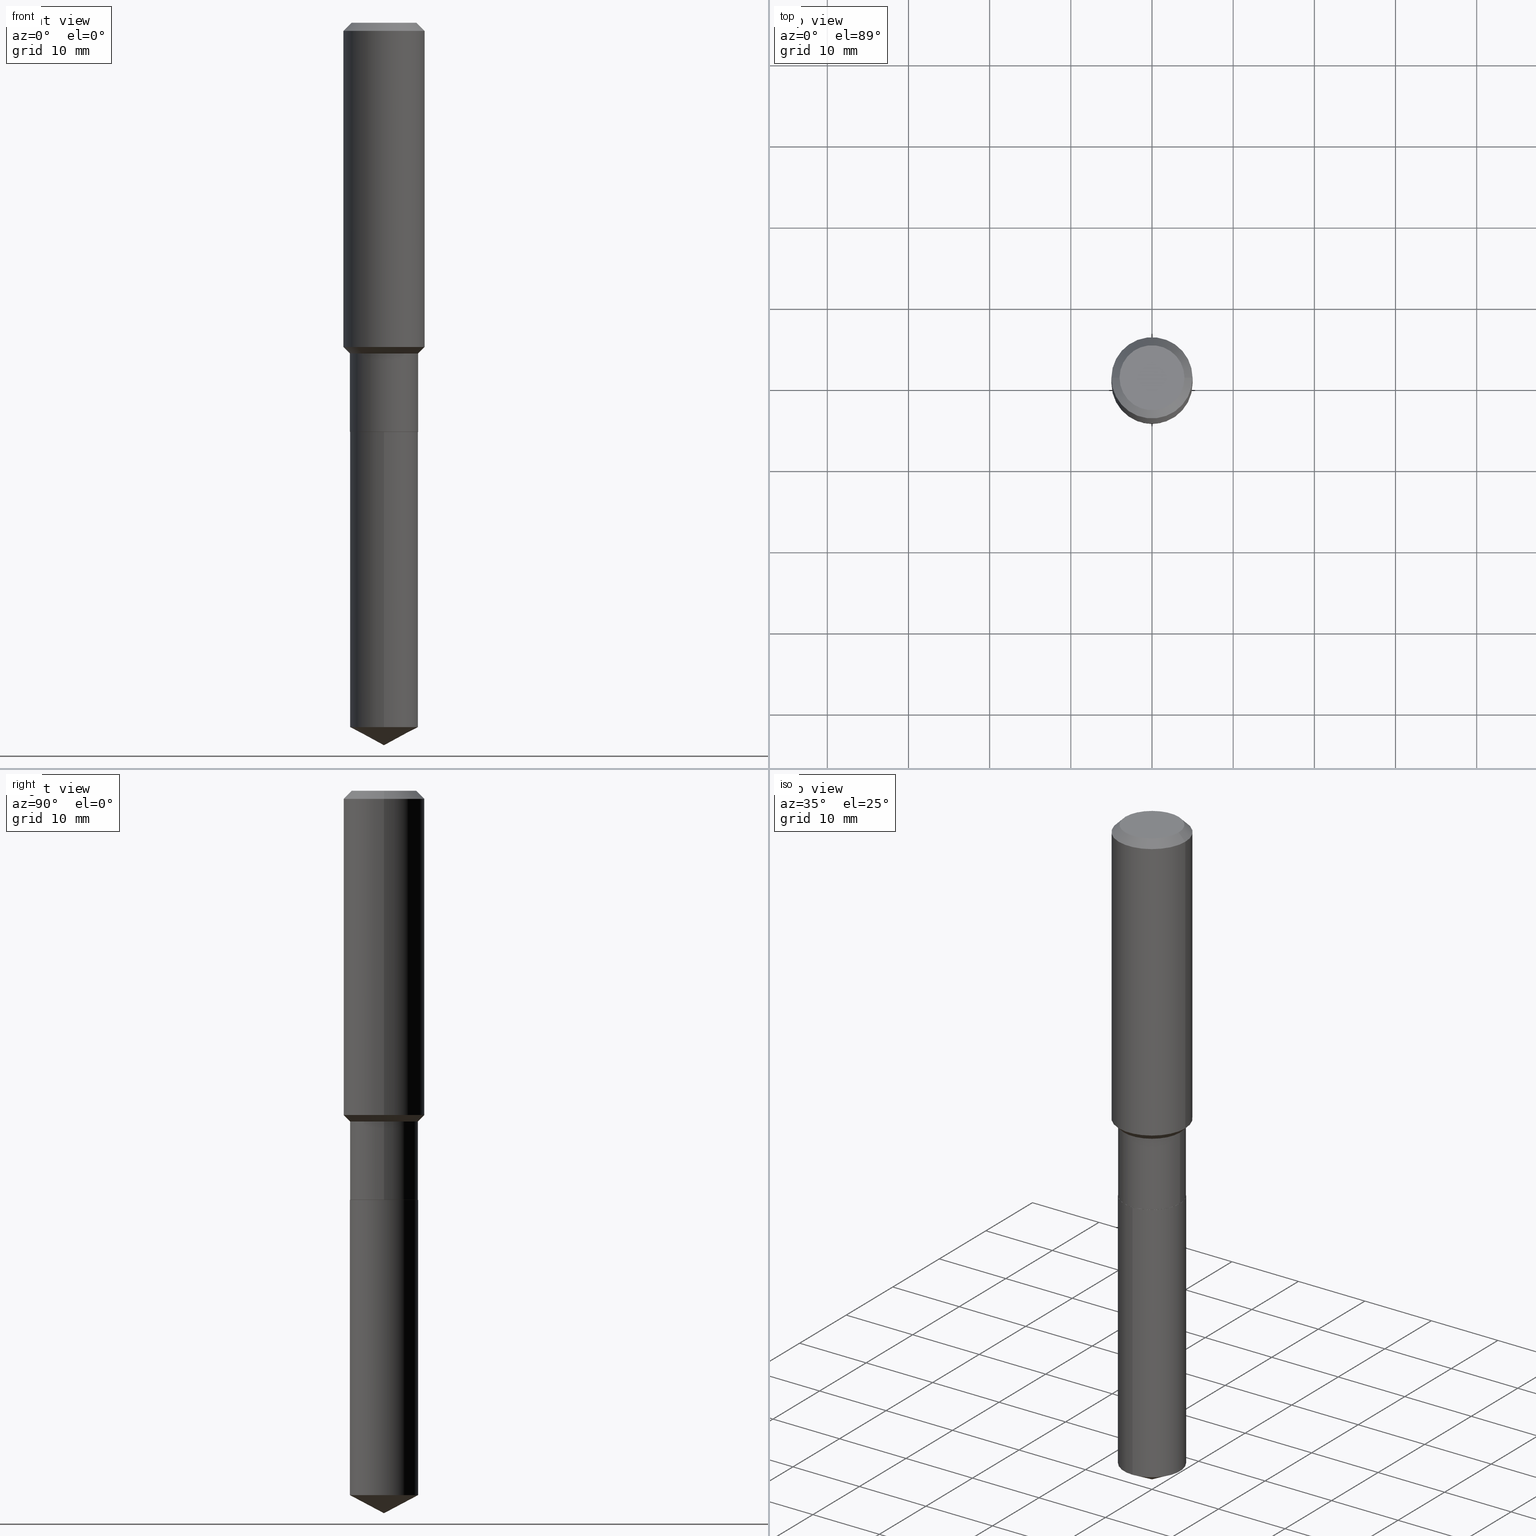
[diagram: canonical four-view strip — front | top / right | iso, engineering-drawing reading convention]
A machine part, canonical four-view strip (front | top / right | iso — engineering-drawing reading convention). The complete STEP part file that produces these views, byte-faithful:
ISO-10303-21;
HEADER;
FILE_DESCRIPTION (( 'STEP AP203' ),
    '1' );
FILE_NAME ('64654.STEP',
    '2024-04-24T18:36:30',
    ( '' ),
    ( '' ),
    'SwSTEP 2.0',
    'SolidWorks 2023',
    '' );
FILE_SCHEMA (( 'CONFIG_CONTROL_DESIGN' ));
ENDSEC;

DATA;
#1 = CIRCLE ( 'NONE', #21, 0.1653499999999999415 ) ;
#2 = AXIS2_PLACEMENT_3D ( 'NONE', #329, #45, #189 ) ;
#3 = ORIENTED_EDGE ( 'NONE', *, *, #378, .F. ) ;
#4 = ORIENTED_EDGE ( 'NONE', *, *, #359, .T. ) ;
#5 = DIRECTION ( 'NONE',  ( -2.445468806185136877E-29, 3.491481338843145188E-15, 1.000000000000000000 ) ) ;
#6 = EDGE_CURVE ( 'NONE', #107, #25, #1, .T. ) ;
#7 = ORIENTED_EDGE ( 'NONE', *, *, #13, .T. ) ;
#8 = CARTESIAN_POINT ( 'NONE',  ( 0.000000000000000000, 0.000000000000000000, 0.000000000000000000 ) ) ;
#9 = ORIENTED_EDGE ( 'NONE', *, *, #253, .T. ) ;
#10 = CARTESIAN_POINT ( 'NONE',  ( 0.1653499999999999415, -6.754619798125944299E-15, -1.603899999999999881 ) ) ;
#11 = FACE_OUTER_BOUND ( 'NONE', #128, .T. ) ;
#12 = PERSON_AND_ORGANIZATION ( #479, #88 ) ;
#13 = EDGE_CURVE ( 'NONE', #225, #152, #80, .T. ) ;
#14 = LINE ( 'NONE', #311, #90 ) ;
#15 = PRODUCT_DEFINITION_FORMATION_WITH_SPECIFIED_SOURCE ( 'ANY', '', #176, .NOT_KNOWN. ) ;
#16 = ORIENTED_EDGE ( 'NONE', *, *, #249, .F. ) ;
#17 = DIRECTION ( 'NONE',  ( -1.000000000000000000, 6.982962677686265922E-15, -4.876176775795935793E-29 ) ) ;
#18 = DIRECTION ( 'NONE',  ( -2.445567022801007266E-29, 3.491340687059075982E-15, 1.000000000000000000 ) ) ;
#19 = PLANE ( 'NONE',  #32 ) ;
#20 = CARTESIAN_POINT ( 'NONE',  ( -0.1968500000000001082, 1.398703375343757985E-15, -9.682923725166787881E-30 ) ) ;
#21 = AXIS2_PLACEMENT_3D ( 'NONE', #205, #87, #286 ) ;
#22 = EDGE_LOOP ( 'NONE', ( #260, #339, #247 ) ) ;
#23 = AXIS2_PLACEMENT_3D ( 'NONE', #384, #280, #220 ) ;
#24 = PERSON_AND_ORGANIZATION_ROLE ( 'creator' ) ;
#25 = VERTEX_POINT ( 'NONE', #264 ) ;
#26 = EDGE_CURVE ( 'NONE', #301, #282, #356, .T. ) ;
#27 = DIRECTION ( 'NONE',  ( 0.000000000000000000, 0.000000000000000000, 1.000000000000000000 ) ) ;
#28 = ADVANCED_FACE ( 'NONE', ( #50 ), #211, .T. ) ;
#29 = ADVANCED_FACE ( 'NONE', ( #74 ), #256, .T. ) ;
#30 = EDGE_CURVE ( 'NONE', #107, #209, #67, .T. ) ;
#31 = CIRCLE ( 'NONE', #141, 0.1968500000000002192 ) ;
#32 = AXIS2_PLACEMENT_3D ( 'NONE', #377, #119, #477 ) ;
#33 = CC_DESIGN_SECURITY_CLASSIFICATION ( #285, ( #15 ) ) ;
#34 = ORIENTED_EDGE ( 'NONE', *, *, #122, .F. ) ;
#35 = EDGE_CURVE ( 'NONE', #371, #314, #283, .T. ) ;
#36 = EDGE_LOOP ( 'NONE', ( #226, #341, #265, #184 ) ) ;
#37 = AXIS2_PLACEMENT_3D ( 'NONE', #453, #353, #17 ) ;
#38 = CARTESIAN_POINT ( 'NONE',  ( 0.1968500000000000527, -1.512055823412797583E-15, -0.03937000000000027283 ) ) ;
#39 = CARTESIAN_POINT ( 'NONE',  ( 0.000000000000000000, 0.000000000000000000, 0.000000000000000000 ) ) ;
#40 = EDGE_LOOP ( 'NONE', ( #444, #143, #76, #202 ) ) ;
#41 = CARTESIAN_POINT ( 'NONE',  ( 8.569022291192448495E-29, -1.223330863338629532E-14, -3.503899999999999793 ) ) ;
#42 = ADVANCED_FACE ( 'NONE', ( #452 ), #229, .T. ) ;
#43 = DIRECTION ( 'NONE',  ( -2.445567022801007546E-29, 3.491340687059075982E-15, 1.000000000000000000 ) ) ;
#44 = AXIS2_PLACEMENT_3D ( 'NONE', #81, #331, #390 ) ;
#45 = DIRECTION ( 'NONE',  ( -2.445567022801007266E-29, 3.491340687059075982E-15, 1.000000000000000000 ) ) ;
#46 = PERSON_AND_ORGANIZATION_ROLE ( 'creator' ) ;
#47 = EDGE_CURVE ( 'NONE', #209, #296, #169, .T. ) ;
#48 = DATE_AND_TIME ( #201, #423 ) ;
#49 = ORIENTED_EDGE ( 'NONE', *, *, #6, .F. ) ;
#50 = FACE_OUTER_BOUND ( 'NONE', #22, .T. ) ;
#51 = DATE_AND_TIME ( #464, #357 ) ;
#52 = CC_DESIGN_APPROVAL ( #333, ( #175 ) ) ;
#53 = DIRECTION ( 'NONE',  ( -2.445468806185136597E-29, 3.491481338843145583E-15, 1.000000000000000000 ) ) ;
#54 = COORDINATED_UNIVERSAL_TIME_OFFSET ( 5, 0, .BEHIND. ) ;
#55 = DIRECTION ( 'NONE',  ( -6.982962677686265133E-15, -1.000000000000000000, 3.304321734096478263E-15 ) ) ;
#56 = EDGE_CURVE ( 'NONE', #296, #230, #173, .T. ) ;
#57 = CARTESIAN_POINT ( 'NONE',  ( 4.852299205232547281E-29, -6.927797272532568497E-15, -1.984199999999999742 ) ) ;
#58 = CARTESIAN_POINT ( 'NONE',  ( 9.627810689950950651E-31, -1.374596203102555808E-16, -0.03937000000000027283 ) ) ;
#59 = CONICAL_SURFACE ( 'NONE', #206, 0.1968500000000000527, 0.7853981633974453924 ) ;
#60 = ORIENTED_EDGE ( 'NONE', *, *, #466, .T. ) ;
#61 = COORDINATED_UNIVERSAL_TIME_OFFSET ( 5, 0, .BEHIND. ) ;
#62 = ADVANCED_FACE ( 'NONE', ( #439 ), #121, .F. ) ;
#63 = AXIS2_PLACEMENT_3D ( 'NONE', #239, #383, #161 ) ;
#64 = AXIS2_PLACEMENT_3D ( 'NONE', #8, #218, #100 ) ;
#65 = DIRECTION ( 'NONE',  ( 1.000000000000000000, -6.982962677686266711E-15, 4.876176775795935793E-29 ) ) ;
#66 = EDGE_CURVE ( 'NONE', #219, #230, #31, .T. ) ;
#67 = LINE ( 'NONE', #204, #362 ) ;
#68 = AXIS2_PLACEMENT_3D ( 'NONE', #257, #454, #404 ) ;
#69 = AXIS2_PLACEMENT_3D ( 'NONE', #241, #18, #387 ) ;
#70 = LINE ( 'NONE', #223, #441 ) ;
#71 = ORIENTED_EDGE ( 'NONE', *, *, #409, .T. ) ;
#72 = ORIENTED_EDGE ( 'NONE', *, *, #400, .T. ) ;
#73 = DIRECTION ( 'NONE',  ( -2.445468806185136597E-29, 3.491481338843145583E-15, 1.000000000000000000 ) ) ;
#74 = FACE_OUTER_BOUND ( 'NONE', #137, .T. ) ;
#75 = AXIS2_PLACEMENT_3D ( 'NONE', #437, #394, #420 ) ;
#76 = ORIENTED_EDGE ( 'NONE', *, *, #227, .F. ) ;
#77 = DIRECTION ( 'NONE',  ( -2.445567022801007266E-29, 3.491340687059075982E-15, 1.000000000000000000 ) ) ;
#78 = ORIENTED_EDGE ( 'NONE', *, *, #182, .F. ) ;
#79 = DIRECTION ( 'NONE',  ( 1.000000000000000000, -6.982962677686266711E-15, 0.000000000000000000 ) ) ;
#80 = CIRCLE ( 'NONE', #75, 0.1648499999999999965 ) ;
#81 = CARTESIAN_POINT ( 'NONE',  ( 3.922287418240340052E-29, -5.599986919370520029E-15, -1.603899999999999881 ) ) ;
#82 = DIRECTION ( 'NONE',  ( 1.000000000000000000, -6.982962677686265922E-15, 0.000000000000000000 ) ) ;
#83 = PERSON_AND_ORGANIZATION ( #479, #88 ) ;
#84 = APPROVAL ( #303, 'UNSPECIFIED' ) ;
#85 = DIRECTION ( 'NONE',  ( 1.000000000000000000, -6.982962677686268288E-15, 0.000000000000000000 ) ) ;
#86 = EDGE_LOOP ( 'NONE', ( #146, #130 ) ) ;
#87 = DIRECTION ( 'NONE',  ( -2.445468806185136597E-29, 3.491481338843145583E-15, 1.000000000000000000 ) ) ;
#88 = ORGANIZATION ( 'UNSPECIFIED', 'UNSPECIFIED', '' ) ;
#89 = LINE ( 'NONE', #396, #460 ) ;
#90 = VECTOR ( 'NONE', #470, 39.37007874015748143 ) ;
#91 = APPROVAL_DATE_TIME ( #480, #333 ) ;
#92 = DIRECTION ( 'NONE',  ( -0.7071067811865454633, 2.468850131082235367E-15, -0.7071067811865495711 ) ) ;
#93 = MANIFOLD_SOLID_BREP ( 'Body-Move/Copy2[1]', #245 ) ;
#94 = CARTESIAN_POINT ( 'NONE',  ( -1.154632878755340651E-15, -0.1653500000000119041, -3.415981845474774126 ) ) ;
#95 = CARTESIAN_POINT ( 'NONE',  ( 9.627810689950950651E-31, -1.374596203102555808E-16, -0.03937000000000027283 ) ) ;
#96 = AXIS2_PLACEMENT_3D ( 'NONE', #150, #403, #79 ) ;
#97 = VECTOR ( 'NONE', #129, 39.37007874015748143 ) ;
#98 = EDGE_LOOP ( 'NONE', ( #126, #490 ) ) ;
#99 = DIRECTION ( 'NONE',  ( -1.000000000000000000, 6.982962677686266711E-15, 0.000000000000000000 ) ) ;
#100 = DIRECTION ( 'NONE',  ( 1.000000000000000000, -6.982962677686267499E-15, 4.876176775795935793E-29 ) ) ;
#101 = EDGE_LOOP ( 'NONE', ( #147, #9, #104, #448 ) ) ;
#102 = EDGE_LOOP ( 'NONE', ( #217, #154, #312, #336 ) ) ;
#103 = CARTESIAN_POINT ( 'NONE',  ( 3.845255150845508133E-29, -5.490005257196960571E-15, -1.572399999999999576 ) ) ;
#104 = ORIENTED_EDGE ( 'NONE', *, *, #30, .T. ) ;
#105 = DIRECTION ( 'NONE',  ( 0.7071067811865482389, -2.468850131082264555E-15, 0.7071067811865467956 ) ) ;
#106 = EDGE_LOOP ( 'NONE', ( #167, #71, #49, #475 ) ) ;
#107 = VERTEX_POINT ( 'NONE', #473 ) ;
#108 = CONICAL_SURFACE ( 'NONE', #304, 0.1648499999999999965, 0.7853981633972434429 ) ;
#109 = CALENDAR_DATE ( 2024, 24, 4 ) ;
#110 = APPROVAL_ROLE ( '' ) ;
#111 = DIRECTION ( 'NONE',  ( 6.982962677686265922E-15, 1.000000000000000000, -3.491340687059075982E-15 ) ) ;
#112 = CARTESIAN_POINT ( 'NONE',  ( 0.1968500000000000527, -1.487948651171581996E-15, -0.03937000000000027283 ) ) ;
#113 = CARTESIAN_POINT ( 'NONE',  ( 0.000000000000000000, 0.000000000000000000, 0.000000000000000000 ) ) ;
#114 = EDGE_CURVE ( 'NONE', #282, #301, #274, .T. ) ;
#115 = CONICAL_SURFACE ( 'NONE', #163, 74.04434902938356799, 1.082104136236486713 ) ;
#116 = CIRCLE ( 'NONE', #165, 0.1653499999999999970 ) ;
#117 = EDGE_LOOP ( 'NONE', ( #192, #60, #291, #295 ) ) ;
#118 = FACE_OUTER_BOUND ( 'NONE', #106, .T. ) ;
#119 = DIRECTION ( 'NONE',  ( -2.438088387897960049E-29, 3.491481338843145188E-15, 1.000000000000000000 ) ) ;
#120 = CALENDAR_DATE ( 2024, 24, 4 ) ;
#121 = PLANE ( 'NONE',  #37 ) ;
#122 = EDGE_CURVE ( 'NONE', #209, #219, #478, .T. ) ;
#123 = AXIS2_PLACEMENT_3D ( 'NONE', #376, #53, #275 ) ;
#124 = AXIS2_PLACEMENT_3D ( 'NONE', #57, #203, #352 ) ;
#125 = LINE ( 'NONE', #172, #198 ) ;
#126 = ORIENTED_EDGE ( 'NONE', *, *, #26, .T. ) ;
#127 = DIRECTION ( 'NONE',  ( 1.000000000000000000, -6.982962677686266711E-15, 0.000000000000000000 ) ) ;
#128 = EDGE_LOOP ( 'NONE', ( #252, #4 ) ) ;
#129 = DIRECTION ( 'NONE',  ( -6.165590087286835240E-15, -0.8829475928589264333, 0.4694715627858918050 ) ) ;
#130 = ORIENTED_EDGE ( 'NONE', *, *, #13, .F. ) ;
#131 = ADVANCED_FACE ( 'NONE', ( #457 ), #115, .T. ) ;
#132 = FACE_OUTER_BOUND ( 'NONE', #36, .T. ) ;
#133 = VECTOR ( 'NONE', #168, 39.37007874015748143 ) ;
#134 = CIRCLE ( 'NONE', #422, 0.1968500000000000527 ) ;
#135 = LOCAL_TIME ( 14, 36, 30.00000000000000000, #191 ) ;
#136 = ADVANCED_FACE ( 'NONE', ( #155 ), #108, .T. ) ;
#137 = EDGE_LOOP ( 'NONE', ( #398, #487, #292, #34 ) ) ;
#138 = PRODUCT_RELATED_PRODUCT_CATEGORY ( 'detail', '', ( #176 ) ) ;
#139 = EDGE_LOOP ( 'NONE', ( #78, #483, #72, #450 ) ) ;
#140 = DIRECTION ( 'NONE',  ( 1.000000000000000000, -6.982962677686266711E-15, 4.876176775795935793E-29 ) ) ;
#141 = AXIS2_PLACEMENT_3D ( 'NONE', #313, #166, #82 ) ;
#142 = CONICAL_SURFACE ( 'NONE', #124, 0.1648499999999999965, 0.7853981633972434429 ) ;
#143 = ORIENTED_EDGE ( 'NONE', *, *, #445, .T. ) ;
#144 = APPROVAL_PERSON_ORGANIZATION ( #83, #261, #110 ) ;
#145 = EDGE_CURVE ( 'NONE', #415, #262, #337, .T. ) ;
#146 = ORIENTED_EDGE ( 'NONE', *, *, #153, .F. ) ;
#147 = ORIENTED_EDGE ( 'NONE', *, *, #466, .F. ) ;
#148 = DIRECTION ( 'NONE',  ( -2.445567022801007266E-29, 3.491340687059075982E-15, 1.000000000000000000 ) ) ;
#149 = PERSON_AND_ORGANIZATION ( #479, #88 ) ;
#150 = CARTESIAN_POINT ( 'NONE',  ( 9.627810689950950651E-31, -1.374596203102555808E-16, -0.03937000000000027283 ) ) ;
#151 = CARTESIAN_POINT ( 'NONE',  ( -0.1653499999999999415, 1.174882413579325241E-15, -8.133459171736485198E-30 ) ) ;
#152 = VERTEX_POINT ( 'NONE', #242 ) ;
#153 = EDGE_CURVE ( 'NONE', #152, #225, #367, .T. ) ;
#154 = ORIENTED_EDGE ( 'NONE', *, *, #26, .F. ) ;
#155 = FACE_OUTER_BOUND ( 'NONE', #472, .T. ) ;
#156 = AXIS2_PLACEMENT_3D ( 'NONE', #373, #425, #111 ) ;
#157 = DATE_AND_TIME ( #109, #135 ) ;
#158 = DIRECTION ( 'NONE',  ( -6.982962677686268288E-15, -1.000000000000000000, 3.541896320645559291E-15 ) ) ;
#159 = ORIENTED_EDGE ( 'NONE', *, *, #409, .F. ) ;
#160 = CARTESIAN_POINT ( 'NONE',  ( 4.852299205232547281E-29, -6.927797272532568497E-15, -1.984199999999999742 ) ) ;
#161 = DIRECTION ( 'NONE',  ( 1.000000000000000000, -6.982962677686265922E-15, 4.876223630392693006E-29 ) ) ;
#162 = APPROVAL_DATE_TIME ( #48, #261 ) ;
#163 = AXIS2_PLACEMENT_3D ( 'NONE', #412, #77, #158 ) ;
#164 = APPLICATION_PROTOCOL_DEFINITION ( 'international standard', 'config_control_design', 1994, #345 ) ;
#165 = AXIS2_PLACEMENT_3D ( 'NONE', #392, #484, #214 ) ;
#166 = DIRECTION ( 'NONE',  ( -2.445468806185136597E-29, 3.491481338843145583E-15, 1.000000000000000000 ) ) ;
#167 = ORIENTED_EDGE ( 'NONE', *, *, #153, .T. ) ;
#168 = DIRECTION ( 'NONE',  ( -0.7071067811865482389, 7.493145998870357316E-15, 0.7071067811865467956 ) ) ;
#169 = CIRCLE ( 'NONE', #235, 0.1653499999999999415 ) ;
#170 = AXIS2_PLACEMENT_3D ( 'NONE', #113, #385, #306 ) ;
#171 = COORDINATED_UNIVERSAL_TIME_OFFSET ( 5, 0, .BEHIND. ) ;
#172 = CARTESIAN_POINT ( 'NONE',  ( 8.569025708952287750E-29, -1.223330863338629532E-14, -3.503899999999999793 ) ) ;
#173 = LINE ( 'NONE', #397, #133 ) ;
#174 =( NAMED_UNIT ( * ) PLANE_ANGLE_UNIT ( ) SI_UNIT ( $, .RADIAN. ) );
#175 = PRODUCT_DEFINITION ( 'UNKNOWN', '', #15, #401 ) ;
#176 = PRODUCT ( '64654', '64654', '', ( #195 ) ) ;
#177 = CARTESIAN_POINT ( 'NONE',  ( -1.154632878755375361E-15, -0.1653500000000069081, -1.984199999999999076 ) ) ;
#178 = AXIS2_PLACEMENT_3D ( 'NONE', #160, #428, #200 ) ;
#179 = EDGE_LOOP ( 'NONE', ( #320, #334, #456 ) ) ;
#180 = VECTOR ( 'NONE', #276, 39.37007874015748143 ) ;
#181 = PERSON_AND_ORGANIZATION ( #479, #88 ) ;
#182 = EDGE_CURVE ( 'NONE', #230, #314, #349, .T. ) ;
#183 = FACE_OUTER_BOUND ( 'NONE', #40, .T. ) ;
#184 = ORIENTED_EDGE ( 'NONE', *, *, #400, .F. ) ;
#185 = ORIENTED_EDGE ( 'NONE', *, *, #445, .F. ) ;
#186 = EDGE_LOOP ( 'NONE', ( #234, #354, #193, #3 ) ) ;
#187 = LINE ( 'NONE', #151, #338 ) ;
#188 = CC_DESIGN_DATE_AND_TIME_ASSIGNMENT ( #157, #421, ( #285 ) ) ;
#189 = DIRECTION ( 'NONE',  ( -6.982962677686265133E-15, -1.000000000000000000, 3.304321734096478263E-15 ) ) ;
#190 = CARTESIAN_POINT ( 'NONE',  ( -1.154632878755375361E-15, -0.1653500000000069081, -1.984199999999999076 ) ) ;
#191 = COORDINATED_UNIVERSAL_TIME_OFFSET ( 5, 0, .BEHIND. ) ;
#192 = ORIENTED_EDGE ( 'NONE', *, *, #6, .T. ) ;
#193 = ORIENTED_EDGE ( 'NONE', *, *, #122, .T. ) ;
#194 = SHAPE_DEFINITION_REPRESENTATION ( #361, #309 ) ;
#195 = MECHANICAL_CONTEXT ( 'NONE', #345, 'mechanical' ) ;
#196 = DIRECTION ( 'NONE',  ( -2.445468806185136597E-29, 3.491481338843145583E-15, 1.000000000000000000 ) ) ;
#197 = CALENDAR_DATE ( 2024, 24, 4 ) ;
#198 = VECTOR ( 'NONE', #442, 39.37007874015748143 ) ;
#199 = CARTESIAN_POINT ( 'NONE',  ( -8.771333884222492934E-28, 1.252207700435751071E-13, 35.86617874015747987 ) ) ;
#200 = DIRECTION ( 'NONE',  ( 1.000000000000000000, -6.982962677686268288E-15, 0.000000000000000000 ) ) ;
#201 = CALENDAR_DATE ( 2024, 24, 4 ) ;
#202 = ORIENTED_EDGE ( 'NONE', *, *, #332, .F. ) ;
#203 = DIRECTION ( 'NONE',  ( -2.445468806185136597E-29, 3.491481338843145583E-15, 1.000000000000000000 ) ) ;
#204 = CARTESIAN_POINT ( 'NONE',  ( 0.1653499999999999415, -1.154632878755423876E-15, 8.062758298778576767E-30 ) ) ;
#205 = CARTESIAN_POINT ( 'NONE',  ( 4.851076470829455040E-29, -6.926051531863146205E-15, -1.983699999999999575 ) ) ;
#206 = AXIS2_PLACEMENT_3D ( 'NONE', #95, #406, #99 ) ;
#207 = CARTESIAN_POINT ( 'NONE',  ( -0.1574800000000000089, 1.168406772637159815E-15, 3.855188123707939751E-18 ) ) ;
#208 = DIRECTION ( 'NONE',  ( 1.000000000000000000, 0.000000000000000000, 0.000000000000000000 ) ) ;
#209 = VERTEX_POINT ( 'NONE', #438 ) ;
#210 = CARTESIAN_POINT ( 'NONE',  ( 9.627810689950950651E-31, -1.374596203102555808E-16, -0.03937000000000027283 ) ) ;
#211 = CONICAL_SURFACE ( 'NONE', #431, 74.04434902938356799, 1.082104136236486713 ) ;
#212 = ADVANCED_FACE ( 'NONE', ( #132 ), #323, .T. ) ;
#213 = AXIS2_PLACEMENT_3D ( 'NONE', #360, #290, #250 ) ;
#214 = DIRECTION ( 'NONE',  ( -6.982962677686265133E-15, -1.000000000000000000, 3.304321734096478263E-15 ) ) ;
#215 = LOCAL_TIME ( 14, 36, 30.00000000000000000, #61 ) ;
#216 =( NAMED_UNIT ( * ) SI_UNIT ( $, .STERADIAN. ) SOLID_ANGLE_UNIT ( ) );
#217 = ORIENTED_EDGE ( 'NONE', *, *, #294, .F. ) ;
#218 = DIRECTION ( 'NONE',  ( -2.445468806185136597E-29, 3.491481338843145583E-15, 1.000000000000000000 ) ) ;
#219 = VERTEX_POINT ( 'NONE', #255 ) ;
#220 = DIRECTION ( 'NONE',  ( 1.000000000000000000, -6.982962677686267499E-15, 0.000000000000000000 ) ) ;
#221 = CC_DESIGN_PERSON_AND_ORGANIZATION_ASSIGNMENT ( #236, #271, ( #285 ) ) ;
#222 = DIRECTION ( 'NONE',  ( -6.982962677686265133E-15, -1.000000000000000000, 3.304321734096478263E-15 ) ) ;
#223 = CARTESIAN_POINT ( 'NONE',  ( 1.174882413579373756E-15, 0.1653499999999930581, -1.984200000000000186 ) ) ;
#224 = APPLICATION_PROTOCOL_DEFINITION ( 'international standard', 'config_control_design', 1994, #381 ) ;
#225 = VERTEX_POINT ( 'NONE', #364 ) ;
#226 = ORIENTED_EDGE ( 'NONE', *, *, #66, .T. ) ;
#227 = EDGE_CURVE ( 'NONE', #254, #259, #116, .T. ) ;
#228 = LINE ( 'NONE', #258, #368 ) ;
#229 = CYLINDRICAL_SURFACE ( 'NONE', #328, 0.1968500000000001082 ) ;
#230 = VERTEX_POINT ( 'NONE', #288 ) ;
#231 = CC_DESIGN_PERSON_AND_ORGANIZATION_ASSIGNMENT ( #181, #24, ( #175 ) ) ;
#232 = LINE ( 'NONE', #469, #180 ) ;
#233 = FACE_OUTER_BOUND ( 'NONE', #186, .T. ) ;
#234 = ORIENTED_EDGE ( 'NONE', *, *, #56, .F. ) ;
#235 = AXIS2_PLACEMENT_3D ( 'NONE', #299, #343, #434 ) ;
#236 = PERSON_AND_ORGANIZATION ( #479, #88 ) ;
#237 = DATE_AND_TIME ( #197, #363 ) ;
#238 = EDGE_CURVE ( 'NONE', #461, #415, #125, .T. ) ;
#239 = CARTESIAN_POINT ( 'NONE',  ( -9.427742298522567634E-47, 1.346031739168368355E-32, 3.855188123715870730E-18 ) ) ;
#240 = SECURITY_CLASSIFICATION_LEVEL ( 'unclassified' ) ;
#241 = CARTESIAN_POINT ( 'NONE',  ( 4.852299205232546721E-29, -6.927797272532567708E-15, -1.984199999999999520 ) ) ;
#242 = CARTESIAN_POINT ( 'NONE',  ( 0.1648499999999999965, -8.078938669949150549E-15, -1.984199999999999742 ) ) ;
#243 = ORIENTED_EDGE ( 'NONE', *, *, #287, .T. ) ;
#244 = EDGE_CURVE ( 'NONE', #314, #371, #134, .T. ) ;
#245 = CLOSED_SHELL ( 'NONE', ( #326, #131, #28, #279, #435 ) ) ;
#246 = CONICAL_SURFACE ( 'NONE', #393, 0.1968500000000000527, 0.7853981633974453924 ) ;
#247 = ORIENTED_EDGE ( 'NONE', *, *, #145, .F. ) ;
#248 = LINE ( 'NONE', #391, #97 ) ;
#249 = EDGE_CURVE ( 'NONE', #301, #314, #89, .T. ) ;
#250 = DIRECTION ( 'NONE',  ( 1.000000000000000000, -6.982962677686267499E-15, 0.000000000000000000 ) ) ;
#251 = CC_DESIGN_APPROVAL ( #84, ( #15 ) ) ;
#252 = ORIENTED_EDGE ( 'NONE', *, *, #227, .T. ) ;
#253 = EDGE_CURVE ( 'NONE', #25, #107, #410, .T. ) ;
#254 = VERTEX_POINT ( 'NONE', #177 ) ;
#255 = CARTESIAN_POINT ( 'NONE',  ( 0.1968500000000002192, -6.864601460299502968E-15, -1.572399999999999576 ) ) ;
#256 = CONICAL_SURFACE ( 'NONE', #44, 0.1653499999999999415, 0.7853981633974492782 ) ;
#257 = CARTESIAN_POINT ( 'NONE',  ( 4.852299205232546721E-29, -6.927797272532567708E-15, -1.984199999999999520 ) ) ;
#258 = CARTESIAN_POINT ( 'NONE',  ( 0.1968500000000001082, -1.374596203102542397E-15, 9.598753983154305062E-30 ) ) ;
#259 = VERTEX_POINT ( 'NONE', #327 ) ;
#260 = ORIENTED_EDGE ( 'NONE', *, *, #238, .F. ) ;
#261 = APPROVAL ( #416, 'UNSPECIFIED' ) ;
#262 = VERTEX_POINT ( 'NONE', #94 ) ;
#263 = DIRECTION ( 'NONE',  ( 1.000000000000000000, -6.982962677686265922E-15, 0.000000000000000000 ) ) ;
#264 = CARTESIAN_POINT ( 'NONE',  ( -0.1653499999999999415, -5.088136812037508270E-15, -1.983699999999999575 ) ) ;
#265 = ORIENTED_EDGE ( 'NONE', *, *, #35, .F. ) ;
#266 = CIRCLE ( 'NONE', #277, 0.1653499999999999970 ) ;
#267 = MANIFOLD_SOLID_BREP ( 'Body-Move/Copy2[2]', #481 ) ;
#268 = CC_DESIGN_PERSON_AND_ORGANIZATION_ASSIGNMENT ( #149, #300, ( #176 ) ) ;
#269 = ORIENTED_EDGE ( 'NONE', *, *, #114, .F. ) ;
#270 = PLANE ( 'NONE',  #156 ) ;
#271 = PERSON_AND_ORGANIZATION_ROLE ( 'classification_officer' ) ;
#272 = CARTESIAN_POINT ( 'NONE',  ( -0.1968500000000000527, -1.415029063409849697E-15, -0.03937000000000027283 ) ) ;
#273 = CARTESIAN_POINT ( 'NONE',  ( 3.922287418240340052E-29, -5.599986919370520029E-15, -1.603899999999999881 ) ) ;
#274 = CIRCLE ( 'NONE', #63, 0.1574800000000000089 ) ;
#275 = DIRECTION ( 'NONE',  ( 1.000000000000000000, -6.982962677686265922E-15, 4.876223630392693006E-29 ) ) ;
#276 = DIRECTION ( 'NONE',  ( -0.7071067811864026886, 7.493145998869830357E-15, 0.7071067811866923458 ) ) ;
#277 = AXIS2_PLACEMENT_3D ( 'NONE', #489, #148, #222 ) ;
#278 = CARTESIAN_POINT ( 'NONE',  ( 8.353817670370826055E-29, -1.192663548463118080E-14, -3.415981845474774570 ) ) ;
#279 = ADVANCED_FACE ( 'NONE', ( #281 ), #430, .T. ) ;
#280 = DIRECTION ( 'NONE',  ( -2.445468806185136597E-29, 3.491481338843145583E-15, 1.000000000000000000 ) ) ;
#281 = FACE_OUTER_BOUND ( 'NONE', #386, .T. ) ;
#282 = VERTEX_POINT ( 'NONE', #319 ) ;
#283 = CIRCLE ( 'NONE', #96, 0.1968500000000000527 ) ;
#284 = VECTOR ( 'NONE', #414, 39.37007874015748143 ) ;
#285 = SECURITY_CLASSIFICATION ( '', '', #240 ) ;
#286 = DIRECTION ( 'NONE',  ( 1.000000000000000000, -6.982962677686267499E-15, 0.000000000000000000 ) ) ;
#287 = EDGE_CURVE ( 'NONE', #152, #107, #14, .T. ) ;
#288 = CARTESIAN_POINT ( 'NONE',  ( -0.1968500000000002192, -4.091301881853201994E-15, -1.572399999999999576 ) ) ;
#289 = VECTOR ( 'NONE', #463, 39.37007874015748143 ) ;
#290 = DIRECTION ( 'NONE',  ( -2.445468806185136597E-29, 3.491481338843145583E-15, 1.000000000000000000 ) ) ;
#291 = ORIENTED_EDGE ( 'NONE', *, *, #47, .F. ) ;
#292 = ORIENTED_EDGE ( 'NONE', *, *, #66, .F. ) ;
#293 = CONICAL_SURFACE ( 'NONE', #482, 0.1653499999999999415, 0.7853981633974492782 ) ;
#294 = EDGE_CURVE ( 'NONE', #282, #371, #307, .T. ) ;
#295 = ORIENTED_EDGE ( 'NONE', *, *, #30, .F. ) ;
#296 = VERTEX_POINT ( 'NONE', #465 ) ;
#297 = ORIENTED_EDGE ( 'NONE', *, *, #145, .T. ) ;
#298 = ORIENTED_EDGE ( 'NONE', *, *, #332, .T. ) ;
#299 = CARTESIAN_POINT ( 'NONE',  ( 3.922287418240340052E-29, -5.599986919370520029E-15, -1.603899999999999881 ) ) ;
#300 = PERSON_AND_ORGANIZATION_ROLE ( 'design_owner' ) ;
#301 = VERTEX_POINT ( 'NONE', #207 ) ;
#302 = FACE_OUTER_BOUND ( 'NONE', #411, .T. ) ;
#303 = APPROVAL_STATUS ( 'not_yet_approved' ) ;
#304 = AXIS2_PLACEMENT_3D ( 'NONE', #462, #476, #85 ) ;
#305 =( GEOMETRIC_REPRESENTATION_CONTEXT ( 3 ) GLOBAL_UNCERTAINTY_ASSIGNED_CONTEXT ( ( #443 ) ) GLOBAL_UNIT_ASSIGNED_CONTEXT ( ( #467, #174, #216 ) ) REPRESENTATION_CONTEXT ( 'NONE', 'WORKASPACE' ) );
#306 = DIRECTION ( 'NONE',  ( 1.000000000000000000, -6.982962677686267499E-15, 4.876176775795935793E-29 ) ) ;
#307 = LINE ( 'NONE', #112, #284 ) ;
#308 = ORIENTED_EDGE ( 'NONE', *, *, #35, .T. ) ;
#309 = ADVANCED_BREP_SHAPE_REPRESENTATION ( '64654', ( #93, #267, #432 ), #305 ) ;
#310 = DIRECTION ( 'NONE',  ( -1.000000000000000000, 6.982962677686266711E-15, 0.000000000000000000 ) ) ;
#311 = CARTESIAN_POINT ( 'NONE',  ( 0.1648499999999999965, -8.078938669949150549E-15, -1.984199999999999742 ) ) ;
#312 = ORIENTED_EDGE ( 'NONE', *, *, #249, .T. ) ;
#313 = CARTESIAN_POINT ( 'NONE',  ( 3.845255150845508133E-29, -5.490005257196960571E-15, -1.572399999999999576 ) ) ;
#314 = VERTEX_POINT ( 'NONE', #272 ) ;
#315 = DIRECTION ( 'NONE',  ( -2.445567022801007266E-29, 3.491340687059075982E-15, 1.000000000000000000 ) ) ;
#316 = ADVANCED_FACE ( 'NONE', ( #233 ), #293, .T. ) ;
#317 = AXIS2_PLACEMENT_3D ( 'NONE', #39, #447, #65 ) ;
#318 = CC_DESIGN_APPROVAL ( #261, ( #285 ) ) ;
#319 = CARTESIAN_POINT ( 'NONE',  ( 0.1574800000000000089, -1.284169937930321386E-15, 3.855188123724205385E-18 ) ) ;
#320 = ORIENTED_EDGE ( 'NONE', *, *, #436, .F. ) ;
#321 = EDGE_CURVE ( 'NONE', #296, #209, #451, .T. ) ;
#322 = APPROVAL_PERSON_ORGANIZATION ( #485, #84, #370 ) ;
#323 = CYLINDRICAL_SURFACE ( 'NONE', #317, 0.1968500000000001082 ) ;
#324 = APPROVAL_ROLE ( '' ) ;
#325 = PERSON_AND_ORGANIZATION ( #479, #88 ) ;
#326 = ADVANCED_FACE ( 'NONE', ( #183 ), #366, .T. ) ;
#327 = CARTESIAN_POINT ( 'NONE',  ( 1.174882413579409058E-15, 0.1653499999999930581, -1.984200000000000186 ) ) ;
#328 = AXIS2_PLACEMENT_3D ( 'NONE', #372, #196, #140 ) ;
#329 = CARTESIAN_POINT ( 'NONE',  ( 4.852299205232546721E-29, -6.927797272532567708E-15, -1.984199999999999520 ) ) ;
#330 = CIRCLE ( 'NONE', #68, 0.1653499999999999970 ) ;
#331 = DIRECTION ( 'NONE',  ( -2.445468806185136597E-29, 3.491481338843145583E-15, 1.000000000000000000 ) ) ;
#332 = EDGE_CURVE ( 'NONE', #262, #254, #379, .T. ) ;
#333 = APPROVAL ( #433, 'UNSPECIFIED' ) ;
#334 = ORIENTED_EDGE ( 'NONE', *, *, #238, .T. ) ;
#335 =( LENGTH_UNIT ( ) NAMED_UNIT ( * ) SI_UNIT ( $, .METRE. ) );
#336 = ORIENTED_EDGE ( 'NONE', *, *, #244, .T. ) ;
#337 = CIRCLE ( 'NONE', #389, 0.1653499999999999970 ) ;
#338 = VECTOR ( 'NONE', #5, 39.37007874015748143 ) ;
#339 = ORIENTED_EDGE ( 'NONE', *, *, #436, .T. ) ;
#340 = EDGE_CURVE ( 'NONE', #262, #415, #266, .T. ) ;
#341 = ORIENTED_EDGE ( 'NONE', *, *, #182, .T. ) ;
#342 = DIRECTION ( 'NONE',  ( -6.982962677686268288E-15, -1.000000000000000000, 3.541896320645559291E-15 ) ) ;
#343 = DIRECTION ( 'NONE',  ( -2.445468806185136597E-29, 3.491481338843145583E-15, 1.000000000000000000 ) ) ;
#344 = AXIS2_PLACEMENT_3D ( 'NONE', #103, #73, #263 ) ;
#345 = APPLICATION_CONTEXT ( 'configuration controlled 3d designs of mechanical parts and assemblies' ) ;
#346 = DIRECTION ( 'NONE',  ( 2.445468806185136597E-29, -3.491481338843145583E-15, -1.000000000000000000 ) ) ;
#347 = CYLINDRICAL_SURFACE ( 'NONE', #170, 0.1653499999999999415 ) ;
#348 = CC_DESIGN_PERSON_AND_ORGANIZATION_ASSIGNMENT ( #12, #46, ( #15 ) ) ;
#349 = LINE ( 'NONE', #20, #440 ) ;
#350 = FACE_OUTER_BOUND ( 'NONE', #86, .T. ) ;
#351 = APPROVAL_DATE_TIME ( #51, #84 ) ;
#352 = DIRECTION ( 'NONE',  ( 1.000000000000000000, -6.982962677686268288E-15, 0.000000000000000000 ) ) ;
#353 = DIRECTION ( 'NONE',  ( 2.438088387897960049E-29, -3.491481338843145188E-15, -1.000000000000000000 ) ) ;
#354 = ORIENTED_EDGE ( 'NONE', *, *, #321, .T. ) ;
#355 = ADVANCED_FACE ( 'NONE', ( #302 ), #59, .T. ) ;
#356 = CIRCLE ( 'NONE', #123, 0.1574800000000000089 ) ;
#357 = LOCAL_TIME ( 14, 36, 30.00000000000000000, #54 ) ;
#358 = DIRECTION ( 'NONE',  ( -2.445468806185136597E-29, 3.491481338843145583E-15, 1.000000000000000000 ) ) ;
#359 = EDGE_CURVE ( 'NONE', #259, #254, #330, .T. ) ;
#360 = CARTESIAN_POINT ( 'NONE',  ( 4.851076470829455040E-29, -6.926051531863146205E-15, -1.983699999999999575 ) ) ;
#361 = PRODUCT_DEFINITION_SHAPE ( 'NONE', 'NONE',  #175 ) ;
#362 = VECTOR ( 'NONE', #459, 39.37007874015748143 ) ;
#363 = LOCAL_TIME ( 14, 36, 30.00000000000000000, #171 ) ;
#364 = CARTESIAN_POINT ( 'NONE',  ( -0.1648499999999999965, -5.753818345457932559E-15, -1.984199999999999742 ) ) ;
#365 = CYLINDRICAL_SURFACE ( 'NONE', #64, 0.1653499999999999415 ) ;
#366 = CYLINDRICAL_SURFACE ( 'NONE', #2, 0.1653499999999999970 ) ;
#367 = CIRCLE ( 'NONE', #178, 0.1648499999999999965 ) ;
#368 = VECTOR ( 'NONE', #405, 39.37007874015748143 ) ;
#369 = CARTESIAN_POINT ( 'NONE',  ( 1.174882413579409058E-15, 0.1653499999999880621, -3.415981845474775458 ) ) ;
#370 = APPROVAL_ROLE ( '' ) ;
#371 = VERTEX_POINT ( 'NONE', #38 ) ;
#372 = CARTESIAN_POINT ( 'NONE',  ( 0.000000000000000000, 0.000000000000000000, 0.000000000000000000 ) ) ;
#373 = CARTESIAN_POINT ( 'NONE',  ( 4.852299205232546721E-29, -6.927797272532567708E-15, -1.984199999999999520 ) ) ;
#374 = PERSON_AND_ORGANIZATION_ROLE ( 'design_supplier' ) ;
#375 = ORIENTED_EDGE ( 'NONE', *, *, #253, .F. ) ;
#376 = CARTESIAN_POINT ( 'NONE',  ( -9.427742298522567634E-47, 1.346031739168368355E-32, 3.855188123715870730E-18 ) ) ;
#377 = CARTESIAN_POINT ( 'NONE',  ( 2.556188913515132998E-29, -1.021595789675375694E-14, -1.984199999999999520 ) ) ;
#378 = EDGE_CURVE ( 'NONE', #230, #219, #488, .T. ) ;
#379 = LINE ( 'NONE', #190, #289 ) ;
#380 = CC_DESIGN_DATE_AND_TIME_ASSIGNMENT ( #237, #382, ( #175 ) ) ;
#381 = APPLICATION_CONTEXT ( 'configuration controlled 3d designs of mechanical parts and assemblies' ) ;
#382 = DATE_TIME_ROLE ( 'creation_date' ) ;
#383 = DIRECTION ( 'NONE',  ( -2.445468806185136597E-29, 3.491481338843145583E-15, 1.000000000000000000 ) ) ;
#384 = CARTESIAN_POINT ( 'NONE',  ( 3.922287418240340052E-29, -5.599986919370520029E-15, -1.603899999999999881 ) ) ;
#385 = DIRECTION ( 'NONE',  ( -2.445468806185136597E-29, 3.491481338843145583E-15, 1.000000000000000000 ) ) ;
#386 = EDGE_LOOP ( 'NONE', ( #185, #297, #298, #446 ) ) ;
#387 = DIRECTION ( 'NONE',  ( -6.982962677686265133E-15, -1.000000000000000000, 3.304321734096478263E-15 ) ) ;
#388 = ADVANCED_FACE ( 'NONE', ( #407 ), #347, .T. ) ;
#389 = AXIS2_PLACEMENT_3D ( 'NONE', #278, #315, #55 ) ;
#390 = DIRECTION ( 'NONE',  ( 1.000000000000000000, -6.982962677686267499E-15, 0.000000000000000000 ) ) ;
#391 = CARTESIAN_POINT ( 'NONE',  ( 8.568632528374027176E-29, -1.223386679592619757E-14, -3.503899999999999793 ) ) ;
#392 = CARTESIAN_POINT ( 'NONE',  ( 4.852299205232546721E-29, -6.927797272532567708E-15, -1.984199999999999520 ) ) ;
#393 = AXIS2_PLACEMENT_3D ( 'NONE', #58, #346, #310 ) ;
#394 = DIRECTION ( 'NONE',  ( -2.445468806185136597E-29, 3.491481338843145583E-15, 1.000000000000000000 ) ) ;
#395 = CC_DESIGN_PERSON_AND_ORGANIZATION_ASSIGNMENT ( #426, #374, ( #15 ) ) ;
#396 = CARTESIAN_POINT ( 'NONE',  ( -0.1968500000000000527, 1.237136582792286422E-15, -0.03937000000000027283 ) ) ;
#397 = CARTESIAN_POINT ( 'NONE',  ( -0.1653499999999999415, -4.425104505791195182E-15, -1.603899999999999881 ) ) ;
#398 = ORIENTED_EDGE ( 'NONE', *, *, #47, .T. ) ;
#399 = ADVANCED_FACE ( 'NONE', ( #118 ), #142, .T. ) ;
#400 = EDGE_CURVE ( 'NONE', #219, #371, #228, .T. ) ;
#401 = DESIGN_CONTEXT ( 'detailed design', #381, 'design' ) ;
#402 = APPROVAL_PERSON_ORGANIZATION ( #325, #333, #324 ) ;
#403 = DIRECTION ( 'NONE',  ( -2.445468806185136597E-29, 3.491481338843145583E-15, 1.000000000000000000 ) ) ;
#404 = DIRECTION ( 'NONE',  ( -6.982962677686265133E-15, -1.000000000000000000, 3.304321734096478263E-15 ) ) ;
#405 = DIRECTION ( 'NONE',  ( -2.445468806185136877E-29, 3.491481338843145188E-15, 1.000000000000000000 ) ) ;
#406 = DIRECTION ( 'NONE',  ( 2.445468806185136597E-29, -3.491481338843145583E-15, -1.000000000000000000 ) ) ;
#407 = FACE_OUTER_BOUND ( 'NONE', #101, .T. ) ;
#408 = VECTOR ( 'NONE', #105, 39.37007874015748143 ) ;
#409 = EDGE_CURVE ( 'NONE', #225, #25, #232, .T. ) ;
#410 = CIRCLE ( 'NONE', #213, 0.1653499999999999415 ) ;
#411 = EDGE_LOOP ( 'NONE', ( #269, #418, #308, #16 ) ) ;
#412 = CARTESIAN_POINT ( 'NONE',  ( -8.771333884222492934E-28, 1.252207700435751071E-13, 35.86617874015747987 ) ) ;
#413 = ADVANCED_FACE ( 'NONE', ( #350 ), #19, .F. ) ;
#414 = DIRECTION ( 'NONE',  ( 0.7071067811865454633, -7.319954787623248157E-15, -0.7071067811865495711 ) ) ;
#415 = VERTEX_POINT ( 'NONE', #369 ) ;
#416 = APPROVAL_STATUS ( 'not_yet_approved' ) ;
#417 = CARTESIAN_POINT ( 'NONE',  ( 0.000000000000000000, 0.000000000000000000, 0.000000000000000000 ) ) ;
#418 = ORIENTED_EDGE ( 'NONE', *, *, #294, .T. ) ;
#419 = ADVANCED_FACE ( 'NONE', ( #429 ), #246, .T. ) ;
#420 = DIRECTION ( 'NONE',  ( 1.000000000000000000, -6.982962677686268288E-15, 0.000000000000000000 ) ) ;
#421 = DATE_TIME_ROLE ( 'classification_date' ) ;
#422 = AXIS2_PLACEMENT_3D ( 'NONE', #210, #358, #127 ) ;
#423 = LOCAL_TIME ( 14, 36, 30.00000000000000000, #458 ) ;
#424 = DIRECTION ( 'NONE',  ( -2.445567022801007266E-29, 3.491340687059075982E-15, 1.000000000000000000 ) ) ;
#425 = DIRECTION ( 'NONE',  ( 2.445567022801006986E-29, -3.491340687059075982E-15, -1.000000000000000000 ) ) ;
#426 = PERSON_AND_ORGANIZATION ( #479, #88 ) ;
#427 = DIRECTION ( 'NONE',  ( 1.000000000000000000, -6.982962677686267499E-15, 0.000000000000000000 ) ) ;
#428 = DIRECTION ( 'NONE',  ( -2.445468806185136597E-29, 3.491481338843145583E-15, 1.000000000000000000 ) ) ;
#429 = FACE_OUTER_BOUND ( 'NONE', #102, .T. ) ;
#430 = CYLINDRICAL_SURFACE ( 'NONE', #69, 0.1653499999999999970 ) ;
#431 = AXIS2_PLACEMENT_3D ( 'NONE', #199, #424, #342 ) ;
#432 = AXIS2_PLACEMENT_3D ( 'NONE', #417, #27, #208 ) ;
#433 = APPROVAL_STATUS ( 'not_yet_approved' ) ;
#434 = DIRECTION ( 'NONE',  ( 1.000000000000000000, -6.982962677686267499E-15, 0.000000000000000000 ) ) ;
#435 = ADVANCED_FACE ( 'NONE', ( #11 ), #270, .F. ) ;
#436 = EDGE_CURVE ( 'NONE', #461, #262, #248, .T. ) ;
#437 = CARTESIAN_POINT ( 'NONE',  ( 4.852299205232547281E-29, -6.927797272532568497E-15, -1.984199999999999742 ) ) ;
#438 = CARTESIAN_POINT ( 'NONE',  ( 0.1653499999999999415, -6.754619798125944299E-15, -1.603899999999999881 ) ) ;
#439 = FACE_OUTER_BOUND ( 'NONE', #98, .T. ) ;
#440 = VECTOR ( 'NONE', #486, 39.37007874015748143 ) ;
#441 = VECTOR ( 'NONE', #43, 39.37007874015748143 ) ;
#442 = DIRECTION ( 'NONE',  ( 6.273719981627766076E-15, 0.8829475928589297640, 0.4694715627858855878 ) ) ;
#443 = UNCERTAINTY_MEASURE_WITH_UNIT (LENGTH_MEASURE( 1.000000000000000082E-05 ), #467, 'distance_accuracy_value', 'NONE');
#444 = ORIENTED_EDGE ( 'NONE', *, *, #340, .T. ) ;
#445 = EDGE_CURVE ( 'NONE', #415, #259, #70, .T. ) ;
#446 = ORIENTED_EDGE ( 'NONE', *, *, #359, .F. ) ;
#447 = DIRECTION ( 'NONE',  ( -2.445468806185136597E-29, 3.491481338843145583E-15, 1.000000000000000000 ) ) ;
#448 = ORIENTED_EDGE ( 'NONE', *, *, #321, .F. ) ;
#449 = FACE_OUTER_BOUND ( 'NONE', #117, .T. ) ;
#450 = ORIENTED_EDGE ( 'NONE', *, *, #244, .F. ) ;
#451 = CIRCLE ( 'NONE', #23, 0.1653499999999999415 ) ;
#452 = FACE_OUTER_BOUND ( 'NONE', #139, .T. ) ;
#453 = CARTESIAN_POINT ( 'NONE',  ( -4.713871149261283817E-47, 6.730158695841841775E-33, 1.927594061857935365E-18 ) ) ;
#454 = DIRECTION ( 'NONE',  ( -2.445567022801007266E-29, 3.491340687059075982E-15, 1.000000000000000000 ) ) ;
#455 = ADVANCED_FACE ( 'NONE', ( #449 ), #365, .T. ) ;
#456 = ORIENTED_EDGE ( 'NONE', *, *, #340, .F. ) ;
#457 = FACE_OUTER_BOUND ( 'NONE', #179, .T. ) ;
#458 = COORDINATED_UNIVERSAL_TIME_OFFSET ( 5, 0, .BEHIND. ) ;
#459 = DIRECTION ( 'NONE',  ( -2.445468806185136877E-29, 3.491481338843145188E-15, 1.000000000000000000 ) ) ;
#460 = VECTOR ( 'NONE', #92, 39.37007874015748143 ) ;
#461 = VERTEX_POINT ( 'NONE', #41 ) ;
#462 = CARTESIAN_POINT ( 'NONE',  ( 4.852299205232547281E-29, -6.927797272532568497E-15, -1.984199999999999742 ) ) ;
#463 = DIRECTION ( 'NONE',  ( -2.445567022801007546E-29, 3.491340687059075982E-15, 1.000000000000000000 ) ) ;
#464 = CALENDAR_DATE ( 2024, 24, 4 ) ;
#465 = CARTESIAN_POINT ( 'NONE',  ( -0.1653499999999999415, -5.088136812037508270E-15, -1.603899999999999881 ) ) ;
#466 = EDGE_CURVE ( 'NONE', #25, #296, #187, .T. ) ;
#467 =( CONVERSION_BASED_UNIT ( 'INCH', #471 ) LENGTH_UNIT ( ) NAMED_UNIT ( #468 ) );
#468 = DIMENSIONAL_EXPONENTS ( 1.000000000000000000, 0.000000000000000000, 0.000000000000000000, 0.000000000000000000, 0.000000000000000000, 0.000000000000000000, 0.000000000000000000 ) ;
#469 = CARTESIAN_POINT ( 'NONE',  ( -0.1648499999999999965, -5.756467572632043760E-15, -1.984199999999999742 ) ) ;
#470 = DIRECTION ( 'NONE',  ( 0.7071067811864026886, -2.468850131080739687E-15, 0.7071067811866923458 ) ) ;
#471 = LENGTH_MEASURE_WITH_UNIT ( LENGTH_MEASURE( 0.02539999999999999897 ), #335 );
#472 = EDGE_LOOP ( 'NONE', ( #159, #7, #243, #375 ) ) ;
#473 = CARTESIAN_POINT ( 'NONE',  ( 0.1653499999999999415, -8.080684410618569686E-15, -1.983699999999999575 ) ) ;
#474 = DIRECTION ( 'NONE',  ( -2.445468806185136597E-29, 3.491481338843145583E-15, 1.000000000000000000 ) ) ;
#475 = ORIENTED_EDGE ( 'NONE', *, *, #287, .F. ) ;
#476 = DIRECTION ( 'NONE',  ( -2.445468806185136597E-29, 3.491481338843145583E-15, 1.000000000000000000 ) ) ;
#477 = DIRECTION ( 'NONE',  ( 1.000000000000000000, -6.982962677686265922E-15, 4.876176775795935793E-29 ) ) ;
#478 = LINE ( 'NONE', #10, #408 ) ;
#479 = PERSON ( 'UNSPECIFIED', 'UNSPECIFIED', 'UNSPECIFIED', ('UNSPECIFIED'), ('UNSPECIFIED'), ('UNSPECIFIED') ) ;
#480 = DATE_AND_TIME ( #120, #215 ) ;
#481 = CLOSED_SHELL ( 'NONE', ( #399, #355, #212, #29, #455, #388, #316, #42, #419, #62, #413, #136 ) ) ;
#482 = AXIS2_PLACEMENT_3D ( 'NONE', #273, #474, #427 ) ;
#483 = ORIENTED_EDGE ( 'NONE', *, *, #378, .T. ) ;
#484 = DIRECTION ( 'NONE',  ( -2.445567022801007266E-29, 3.491340687059075982E-15, 1.000000000000000000 ) ) ;
#485 = PERSON_AND_ORGANIZATION ( #479, #88 ) ;
#486 = DIRECTION ( 'NONE',  ( -2.445468806185136877E-29, 3.491481338843145188E-15, 1.000000000000000000 ) ) ;
#487 = ORIENTED_EDGE ( 'NONE', *, *, #56, .T. ) ;
#488 = CIRCLE ( 'NONE', #344, 0.1968500000000002192 ) ;
#489 = CARTESIAN_POINT ( 'NONE',  ( 8.353817670370826055E-29, -1.192663548463118080E-14, -3.415981845474774570 ) ) ;
#490 = ORIENTED_EDGE ( 'NONE', *, *, #114, .T. ) ;
ENDSEC;
END-ISO-10303-21;
